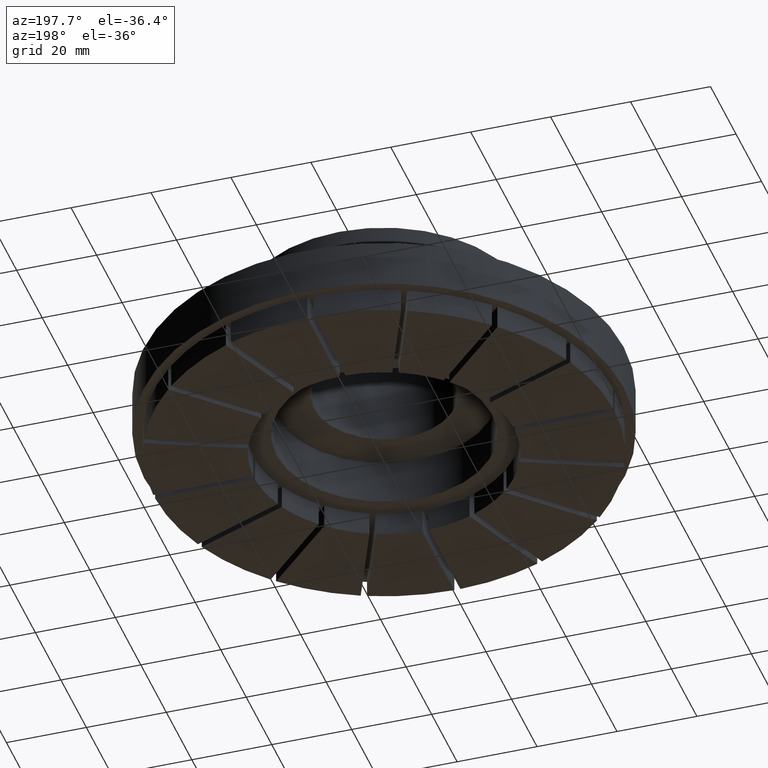
[diagram: clean part render]
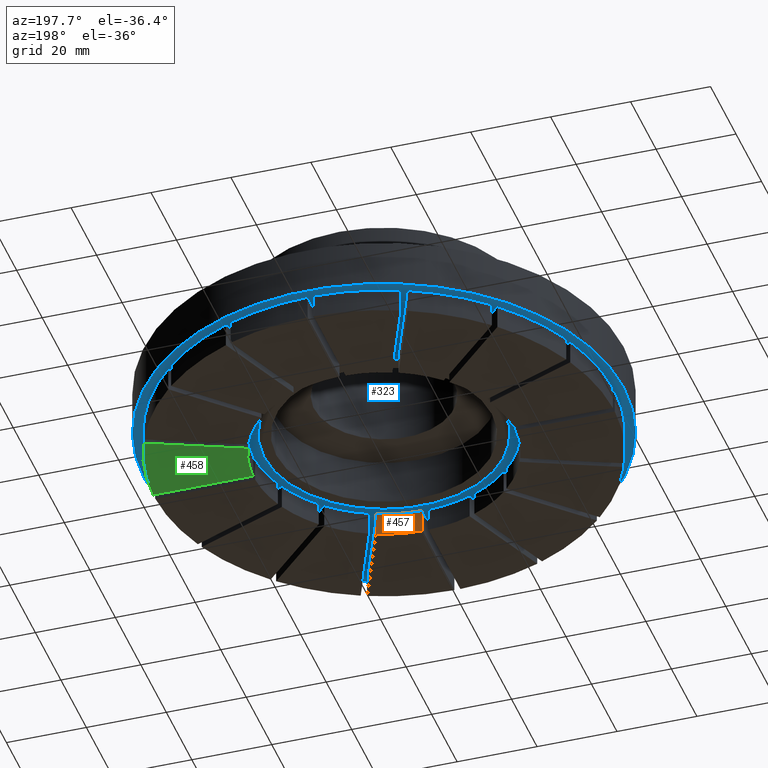
[diagram: same view with three faces highlighted in distinct colors, each labeled with its STEP entity id]
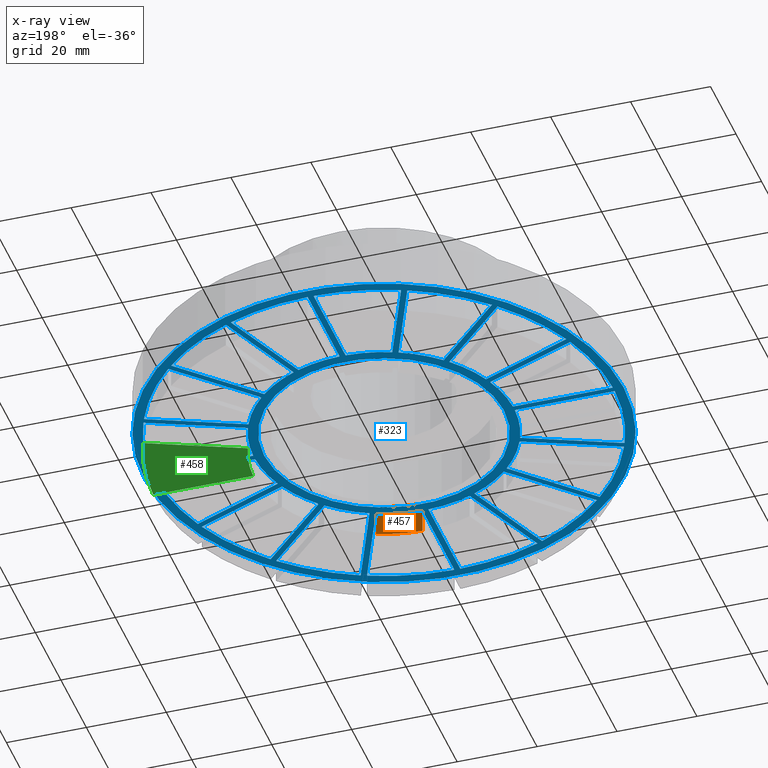
[diagram: x-ray of the same camera — body ghosted, the three highlighted faces saturated]
A machine part, auxiliary view with three faces highlighted in distinct colors.
The next image is the same camera in x-ray (body ghosted, the three faces saturated) — at least one of them is partly hidden behind the body in this view.
Their STEP definitions:

[orange] entity #457 — the highlighted cylindrical surface (partial cylindrical patch) has radius 32.5 mm, axis along (0, 0, 1).
#457 = ADVANCED_FACE( '', ( #708 ), #709, .F. );
#708 = FACE_OUTER_BOUND( '', #960, .T. );
#709 = CYLINDRICAL_SURFACE( '', #961, 32.5000000000000 );
#960 = EDGE_LOOP( '', ( #1759, #1760, #1761, #1762 ) );
#961 = AXIS2_PLACEMENT_3D( '', #1763, #1764, #1765 );
#1759 = ORIENTED_EDGE( '', *, *, #2027, .T. );
#1760 = ORIENTED_EDGE( '', *, *, #2019, .F. );
#1761 = ORIENTED_EDGE( '', *, *, #2022, .F. );
#1762 = ORIENTED_EDGE( '', *, *, #2026, .T. );
#1763 = CARTESIAN_POINT( '', ( 1.38777878078145E-014, 1.08420217248550E-016, 8.00000000000000 ) );
#1764 = DIRECTION( '', ( -0.000000000000000, 0.000000000000000, 1.00000000000000 ) );
#1765 = DIRECTION( '', ( -0.999914930218995, -0.0130434782608696, 0.000000000000000 ) );
#2019 = EDGE_CURVE( '', #2442, #2437, #2444, .T. );
#2022 = EDGE_CURVE( '', #2447, #2442, #2449, .T. );
#2026 = EDGE_CURVE( '', #2447, #2453, #2455, .T. );
#2027 = EDGE_CURVE( '', #2453, #2437, #2456, .T. );
#2437 = VERTEX_POINT( '', #3192 );
#2442 = VERTEX_POINT( '', #3199 );
#2444 = LINE( '', #3202, #3203 );
#2447 = VERTEX_POINT( '', #3206 );
#2449 = CIRCLE( '', #3209, 32.5000000000000 );
#2453 = VERTEX_POINT( '', #3214 );
#2455 = LINE( '', #3217, #3218 );
#2456 = CIRCLE( '', #3219, 32.5000000000000 );
#3192 = CARTESIAN_POINT( '', ( 32.4913450014000, 0.750000000000021, 0.000000000000000 ) );
#3199 = CARTESIAN_POINT( '', ( 32.4913450014000, 0.750000000000021, 8.00000000000000 ) );
#3202 = CARTESIAN_POINT( '', ( 32.4913450014000, 0.750000000000021, 8.00000000000000 ) );
#3203 = VECTOR( '', #3623, 1000.00000000000 );
#3206 = CARTESIAN_POINT( '', ( 30.3051012048301, 11.7409897779106, 8.00000000000000 ) );
#3209 = AXIS2_PLACEMENT_3D( '', #3628, #3629, #3630 );
#3214 = CARTESIAN_POINT( '', ( 30.3051012048301, 11.7409897779106, 0.000000000000000 ) );
#3217 = CARTESIAN_POINT( '', ( 30.3051012048301, 11.7409897779106, 8.00000000000000 ) );
#3218 = VECTOR( '', #3636, 1000.00000000000 );
#3219 = AXIS2_PLACEMENT_3D( '', #3637, #3638, #3639 );
#3623 = DIRECTION( '', ( 0.000000000000000, -0.000000000000000, -1.00000000000000 ) );
#3628 = CARTESIAN_POINT( '', ( 1.38777878078145E-014, 1.08420217248550E-016, 8.00000000000000 ) );
#3629 = DIRECTION( '', ( 0.000000000000000, 0.000000000000000, -1.00000000000000 ) );
#3630 = DIRECTION( '', ( 1.00000000000000, 0.000000000000000, 0.000000000000000 ) );
#3636 = DIRECTION( '', ( 0.000000000000000, -0.000000000000000, -1.00000000000000 ) );
#3637 = CARTESIAN_POINT( '', ( 1.38777878078145E-014, 1.08420217248550E-016, 0.000000000000000 ) );
#3638 = DIRECTION( '', ( 0.000000000000000, 0.000000000000000, -1.00000000000000 ) );
#3639 = DIRECTION( '', ( 1.00000000000000, 0.000000000000000, 0.000000000000000 ) );

[blue] entity #323 — the highlighted planar face has unit normal (0, 0, 1).
#323 = ADVANCED_FACE( '', ( #502, #503, #504, #505, #506, #507, #508, #509, #510, #511, #512, #513, #514, #515, #516, #517, #518, #519 ), #520, .F. );
#502 = FACE_BOUND( '', #754, .T. );
#503 = FACE_BOUND( '', #755, .T. );
#504 = FACE_BOUND( '', #756, .T. );
#505 = FACE_BOUND( '', #757, .T. );
#506 = FACE_BOUND( '', #758, .T. );
#507 = FACE_BOUND( '', #759, .T. );
#508 = FACE_BOUND( '', #760, .T. );
#509 = FACE_BOUND( '', #761, .T. );
#510 = FACE_OUTER_BOUND( '', #762, .T. );
#511 = FACE_BOUND( '', #763, .T. );
#512 = FACE_BOUND( '', #764, .T. );
#513 = FACE_BOUND( '', #765, .T. );
#514 = FACE_BOUND( '', #766, .T. );
#515 = FACE_BOUND( '', #767, .T. );
#516 = FACE_BOUND( '', #768, .T. );
#517 = FACE_BOUND( '', #769, .T. );
#518 = FACE_BOUND( '', #770, .T. );
#519 = FACE_BOUND( '', #771, .T. );
#520 = PLANE( '', #772 );
#754 = EDGE_LOOP( '', ( #1059, #1060, #1061, #1062 ) );
#755 = EDGE_LOOP( '', ( #1063, #1064, #1065, #1066 ) );
#756 = EDGE_LOOP( '', ( #1067, #1068, #1069, #1070 ) );
#757 = EDGE_LOOP( '', ( #1071, #1072, #1073, #1074 ) );
#758 = EDGE_LOOP( '', ( #1075, #1076, #1077, #1078 ) );
#759 = EDGE_LOOP( '', ( #1079, #1080, #1081, #1082 ) );
#760 = EDGE_LOOP( '', ( #1083, #1084, #1085, #1086 ) );
#761 = EDGE_LOOP( '', ( #1087, #1088, #1089, #1090 ) );
#762 = EDGE_LOOP( '', ( #1091 ) );
#763 = EDGE_LOOP( '', ( #1092 ) );
#764 = EDGE_LOOP( '', ( #1093, #1094, #1095, #1096 ) );
#765 = EDGE_LOOP( '', ( #1097, #1098, #1099, #1100 ) );
#766 = EDGE_LOOP( '', ( #1101, #1102, #1103, #1104 ) );
#767 = EDGE_LOOP( '', ( #1105, #1106, #1107, #1108 ) );
#768 = EDGE_LOOP( '', ( #1109, #1110, #1111, #1112 ) );
#769 = EDGE_LOOP( '', ( #1113, #1114, #1115, #1116 ) );
#770 = EDGE_LOOP( '', ( #1117, #1118, #1119, #1120 ) );
#771 = EDGE_LOOP( '', ( #1121, #1122, #1123, #1124 ) );
#772 = AXIS2_PLACEMENT_3D( '', #1125, #1126, #1127 );
#1059 = ORIENTED_EDGE( '', *, *, #1798, .F. );
#1060 = ORIENTED_EDGE( '', *, *, #1799, .F. );
#1061 = ORIENTED_EDGE( '', *, *, #1800, .F. );
#1062 = ORIENTED_EDGE( '', *, *, #1801, .F. );
#1063 = ORIENTED_EDGE( '', *, *, #1802, .F. );
#1064 = ORIENTED_EDGE( '', *, *, #1803, .F. );
#1065 = ORIENTED_EDGE( '', *, *, #1804, .F. );
#1066 = ORIENTED_EDGE( '', *, *, #1805, .F. );
#1067 = ORIENTED_EDGE( '', *, *, #1806, .F. );
#1068 = ORIENTED_EDGE( '', *, *, #1807, .F. );
#1069 = ORIENTED_EDGE( '', *, *, #1808, .F. );
#1070 = ORIENTED_EDGE( '', *, *, #1809, .F. );
#1071 = ORIENTED_EDGE( '', *, *, #1810, .F. );
#1072 = ORIENTED_EDGE( '', *, *, #1811, .F. );
#1073 = ORIENTED_EDGE( '', *, *, #1812, .F. );
#1074 = ORIENTED_EDGE( '', *, *, #1813, .F. );
#1075 = ORIENTED_EDGE( '', *, *, #1814, .F. );
#1076 = ORIENTED_EDGE( '', *, *, #1815, .F. );
#1077 = ORIENTED_EDGE( '', *, *, #1816, .F. );
#1078 = ORIENTED_EDGE( '', *, *, #1817, .F. );
#1079 = ORIENTED_EDGE( '', *, *, #1818, .F. );
#1080 = ORIENTED_EDGE( '', *, *, #1819, .F. );
#1081 = ORIENTED_EDGE( '', *, *, #1820, .F. );
#1082 = ORIENTED_EDGE( '', *, *, #1821, .F. );
#1083 = ORIENTED_EDGE( '', *, *, #1822, .F. );
#1084 = ORIENTED_EDGE( '', *, *, #1823, .F. );
#1085 = ORIENTED_EDGE( '', *, *, #1824, .F. );
#1086 = ORIENTED_EDGE( '', *, *, #1825, .F. );
#1087 = ORIENTED_EDGE( '', *, *, #1826, .F. );
#1088 = ORIENTED_EDGE( '', *, *, #1827, .F. );
#1089 = ORIENTED_EDGE( '', *, *, #1828, .F. );
#1090 = ORIENTED_EDGE( '', *, *, #1829, .F. );
#1091 = ORIENTED_EDGE( '', *, *, #1830, .F. );
#1092 = ORIENTED_EDGE( '', *, *, #1831, .T. );
#1093 = ORIENTED_EDGE( '', *, *, #1832, .F. );
#1094 = ORIENTED_EDGE( '', *, *, #1833, .F. );
#1095 = ORIENTED_EDGE( '', *, *, #1834, .F. );
#1096 = ORIENTED_EDGE( '', *, *, #1835, .F. );
#1097 = ORIENTED_EDGE( '', *, *, #1836, .F. );
#1098 = ORIENTED_EDGE( '', *, *, #1837, .F. );
#1099 = ORIENTED_EDGE( '', *, *, #1838, .F. );
#1100 = ORIENTED_EDGE( '', *, *, #1839, .F. );
#1101 = ORIENTED_EDGE( '', *, *, #1840, .F. );
#1102 = ORIENTED_EDGE( '', *, *, #1841, .F. );
#1103 = ORIENTED_EDGE( '', *, *, #1842, .F. );
#1104 = ORIENTED_EDGE( '', *, *, #1843, .F. );
#1105 = ORIENTED_EDGE( '', *, *, #1844, .F. );
#1106 = ORIENTED_EDGE( '', *, *, #1845, .F. );
#1107 = ORIENTED_EDGE( '', *, *, #1846, .F. );
#1108 = ORIENTED_EDGE( '', *, *, #1847, .F. );
#1109 = ORIENTED_EDGE( '', *, *, #1848, .F. );
#1110 = ORIENTED_EDGE( '', *, *, #1849, .F. );
#1111 = ORIENTED_EDGE( '', *, *, #1850, .F. );
#1112 = ORIENTED_EDGE( '', *, *, #1851, .F. );
#1113 = ORIENTED_EDGE( '', *, *, #1852, .F. );
#1114 = ORIENTED_EDGE( '', *, *, #1853, .F. );
#1115 = ORIENTED_EDGE( '', *, *, #1854, .F. );
#1116 = ORIENTED_EDGE( '', *, *, #1855, .F. );
#1117 = ORIENTED_EDGE( '', *, *, #1856, .F. );
#1118 = ORIENTED_EDGE( '', *, *, #1857, .F. );
#1119 = ORIENTED_EDGE( '', *, *, #1858, .F. );
#1120 = ORIENTED_EDGE( '', *, *, #1859, .F. );
#1121 = ORIENTED_EDGE( '', *, *, #1860, .F. );
#1122 = ORIENTED_EDGE( '', *, *, #1861, .F. );
#1123 = ORIENTED_EDGE( '', *, *, #1862, .F. );
#1124 = ORIENTED_EDGE( '', *, *, #1863, .F. );
#1125 = CARTESIAN_POINT( '', ( 0.000000000000000, 0.000000000000000, 6.00000000000000 ) );
#1126 = DIRECTION( '', ( 0.000000000000000, 0.000000000000000, 1.00000000000000 ) );
#1127 = DIRECTION( '', ( 1.00000000000000, 0.000000000000000, 0.000000000000000 ) );
#1798 = EDGE_CURVE( '', #2073, #2074, #2075, .F. );
#1799 = EDGE_CURVE( '', #2076, #2073, #2077, .T. );
#1800 = EDGE_CURVE( '', #2078, #2076, #2079, .T. );
#1801 = EDGE_CURVE( '', #2074, #2078, #2080, .T. );
#1802 = EDGE_CURVE( '', #2081, #2082, #2083, .F. );
#1803 = EDGE_CURVE( '', #2084, #2081, #2085, .T. );
#1804 = EDGE_CURVE( '', #2086, #2084, #2087, .T. );
#1805 = EDGE_CURVE( '', #2082, #2086, #2088, .T. );
#1806 = EDGE_CURVE( '', #2089, #2090, #2091, .F. );
#1807 = EDGE_CURVE( '', #2092, #2089, #2093, .T. );
#1808 = EDGE_CURVE( '', #2094, #2092, #2095, .T. );
#1809 = EDGE_CURVE( '', #2090, #2094, #2096, .T. );
#1810 = EDGE_CURVE( '', #2097, #2098, #2099, .F. );
#1811 = EDGE_CURVE( '', #2100, #2097, #2101, .T. );
#1812 = EDGE_CURVE( '', #2102, #2100, #2103, .T. );
#1813 = EDGE_CURVE( '', #2098, #2102, #2104, .T. );
#1814 = EDGE_CURVE( '', #2105, #2106, #2107, .F. );
#1815 = EDGE_CURVE( '', #2108, #2105, #2109, .T. );
#1816 = EDGE_CURVE( '', #2110, #2108, #2111, .T. );
#1817 = EDGE_CURVE( '', #2106, #2110, #2112, .T. );
#1818 = EDGE_CURVE( '', #2113, #2114, #2115, .F. );
#1819 = EDGE_CURVE( '', #2116, #2113, #2117, .T. );
#1820 = EDGE_CURVE( '', #2118, #2116, #2119, .T. );
#1821 = EDGE_CURVE( '', #2114, #2118, #2120, .T. );
#1822 = EDGE_CURVE( '', #2121, #2122, #2123, .F. );
#1823 = EDGE_CURVE( '', #2124, #2121, #2125, .T. );
#1824 = EDGE_CURVE( '', #2126, #2124, #2127, .T. );
#1825 = EDGE_CURVE( '', #2122, #2126, #2128, .T. );
#1826 = EDGE_CURVE( '', #2129, #2130, #2131, .F. );
#1827 = EDGE_CURVE( '', #2132, #2129, #2133, .T. );
#1828 = EDGE_CURVE( '', #2134, #2132, #2135, .T. );
#1829 = EDGE_CURVE( '', #2130, #2134, #2136, .T. );
#1830 = EDGE_CURVE( '', #2137, #2137, #2138, .T. );
#1831 = EDGE_CURVE( '', #2139, #2139, #2140, .T. );
#1832 = EDGE_CURVE( '', #2141, #2142, #2143, .F. );
#1833 = EDGE_CURVE( '', #2144, #2141, #2145, .T. );
#1834 = EDGE_CURVE( '', #2146, #2144, #2147, .T. );
#1835 = EDGE_CURVE( '', #2142, #2146, #2148, .T. );
#1836 = EDGE_CURVE( '', #2149, #2150, #2151, .F. );
#1837 = EDGE_CURVE( '', #2152, #2149, #2153, .T. );
#1838 = EDGE_CURVE( '', #2154, #2152, #2155, .T. );
#1839 = EDGE_CURVE( '', #2150, #2154, #2156, .T. );
#1840 = EDGE_CURVE( '', #2157, #2158, #2159, .F. );
#1841 = EDGE_CURVE( '', #2160, #2157, #2161, .T. );
#1842 = EDGE_CURVE( '', #2162, #2160, #2163, .T. );
#1843 = EDGE_CURVE( '', #2158, #2162, #2164, .T. );
#1844 = EDGE_CURVE( '', #2165, #2166, #2167, .F. );
#1845 = EDGE_CURVE( '', #2168, #2165, #2169, .T. );
#1846 = EDGE_CURVE( '', #2170, #2168, #2171, .T. );
#1847 = EDGE_CURVE( '', #2166, #2170, #2172, .T. );
#1848 = EDGE_CURVE( '', #2173, #2174, #2175, .F. );
#1849 = EDGE_CURVE( '', #2176, #2173, #2177, .T. );
#1850 = EDGE_CURVE( '', #2178, #2176, #2179, .T. );
#1851 = EDGE_CURVE( '', #2174, #2178, #2180, .T. );
#1852 = EDGE_CURVE( '', #2181, #2182, #2183, .F. );
#1853 = EDGE_CURVE( '', #2184, #2181, #2185, .T. );
#1854 = EDGE_CURVE( '', #2186, #2184, #2187, .T. );
#1855 = EDGE_CURVE( '', #2182, #2186, #2188, .T. );
#1856 = EDGE_CURVE( '', #2189, #2190, #2191, .F. );
#1857 = EDGE_CURVE( '', #2192, #2189, #2193, .T. );
#1858 = EDGE_CURVE( '', #2194, #2192, #2195, .T. );
#1859 = EDGE_CURVE( '', #2190, #2194, #2196, .T. );
#1860 = EDGE_CURVE( '', #2197, #2198, #2199, .F. );
#1861 = EDGE_CURVE( '', #2200, #2197, #2201, .T. );
#1862 = EDGE_CURVE( '', #2202, #2200, #2203, .T. );
#1863 = EDGE_CURVE( '', #2198, #2202, #2204, .T. );
#2073 = VERTEX_POINT( '', #2646 );
#2074 = VERTEX_POINT( '', #2647 );
#2075 = CIRCLE( '', #2648, 57.5000000000000 );
#2076 = VERTEX_POINT( '', #2649 );
#2077 = LINE( '', #2650, #2651 );
#2078 = VERTEX_POINT( '', #2652 );
#2079 = CIRCLE( '', #2653, 32.5000000000000 );
#2080 = LINE( '', #2654, #2655 );
#2081 = VERTEX_POINT( '', #2656 );
#2082 = VERTEX_POINT( '', #2657 );
#2083 = CIRCLE( '', #2658, 57.5000000000000 );
#2084 = VERTEX_POINT( '', #2659 );
#2085 = LINE( '', #2660, #2661 );
#2086 = VERTEX_POINT( '', #2662 );
#2087 = CIRCLE( '', #2663, 32.5000000000000 );
#2088 = LINE( '', #2664, #2665 );
#2089 = VERTEX_POINT( '', #2666 );
#2090 = VERTEX_POINT( '', #2667 );
#2091 = CIRCLE( '', #2668, 57.5000000000000 );
#2092 = VERTEX_POINT( '', #2669 );
#2093 = LINE( '', #2670, #2671 );
#2094 = VERTEX_POINT( '', #2672 );
#2095 = CIRCLE( '', #2673, 32.5000000000000 );
#2096 = LINE( '', #2674, #2675 );
#2097 = VERTEX_POINT( '', #2676 );
#2098 = VERTEX_POINT( '', #2677 );
#2099 = CIRCLE( '', #2678, 57.5000000000000 );
#2100 = VERTEX_POINT( '', #2679 );
#2101 = LINE( '', #2680, #2681 );
#2102 = VERTEX_POINT( '', #2682 );
#2103 = CIRCLE( '', #2683, 32.5000000000000 );
#2104 = LINE( '', #2684, #2685 );
#2105 = VERTEX_POINT( '', #2686 );
#2106 = VERTEX_POINT( '', #2687 );
#2107 = CIRCLE( '', #2688, 57.5000000000000 );
#2108 = VERTEX_POINT( '', #2689 );
#2109 = LINE( '', #2690, #2691 );
#2110 = VERTEX_POINT( '', #2692 );
#2111 = CIRCLE( '', #2693, 32.5000000000000 );
#2112 = LINE( '', #2694, #2695 );
#2113 = VERTEX_POINT( '', #2696 );
#2114 = VERTEX_POINT( '', #2697 );
#2115 = CIRCLE( '', #2698, 57.5000000000000 );
#2116 = VERTEX_POINT( '', #2699 );
#2117 = LINE( '', #2700, #2701 );
#2118 = VERTEX_POINT( '', #2702 );
#2119 = CIRCLE( '', #2703, 32.5000000000000 );
#2120 = LINE( '', #2704, #2705 );
#2121 = VERTEX_POINT( '', #2706 );
#2122 = VERTEX_POINT( '', #2707 );
#2123 = CIRCLE( '', #2708, 57.5000000000000 );
#2124 = VERTEX_POINT( '', #2709 );
#2125 = LINE( '', #2710, #2711 );
#2126 = VERTEX_POINT( '', #2712 );
#2127 = CIRCLE( '', #2713, 32.5000000000000 );
#2128 = LINE( '', #2714, #2715 );
#2129 = VERTEX_POINT( '', #2716 );
#2130 = VERTEX_POINT( '', #2717 );
#2131 = CIRCLE( '', #2718, 57.5000000000000 );
#2132 = VERTEX_POINT( '', #2719 );
#2133 = LINE( '', #2720, #2721 );
#2134 = VERTEX_POINT( '', #2722 );
#2135 = CIRCLE( '', #2723, 32.5000000000000 );
#2136 = LINE( '', #2724, #2725 );
#2137 = VERTEX_POINT( '', #2726 );
#2138 = CIRCLE( '', #2727, 60.0000000000000 );
#2139 = VERTEX_POINT( '', #2728 );
#2140 = CIRCLE( '', #2729, 30.0000000000000 );
#2141 = VERTEX_POINT( '', #2730 );
#2142 = VERTEX_POINT( '', #2731 );
#2143 = CIRCLE( '', #2732, 57.5000000000000 );
#2144 = VERTEX_POINT( '', #2733 );
#2145 = LINE( '', #2734, #2735 );
#2146 = VERTEX_POINT( '', #2736 );
#2147 = CIRCLE( '', #2737, 32.5000000000000 );
#2148 = LINE( '', #2738, #2739 );
#2149 = VERTEX_POINT( '', #2740 );
#2150 = VERTEX_POINT( '', #2741 );
#2151 = CIRCLE( '', #2742, 57.5000000000000 );
#2152 = VERTEX_POINT( '', #2743 );
#2153 = LINE( '', #2744, #2745 );
#2154 = VERTEX_POINT( '', #2746 );
#2155 = CIRCLE( '', #2747, 32.5000000000000 );
#2156 = LINE( '', #2748, #2749 );
#2157 = VERTEX_POINT( '', #2750 );
#2158 = VERTEX_POINT( '', #2751 );
#2159 = CIRCLE( '', #2752, 57.5000000000000 );
#2160 = VERTEX_POINT( '', #2753 );
#2161 = LINE( '', #2754, #2755 );
#2162 = VERTEX_POINT( '', #2756 );
#2163 = CIRCLE( '', #2757, 32.5000000000000 );
#2164 = LINE( '', #2758, #2759 );
#2165 = VERTEX_POINT( '', #2760 );
#2166 = VERTEX_POINT( '', #2761 );
#2167 = CIRCLE( '', #2762, 57.5000000000000 );
#2168 = VERTEX_POINT( '', #2763 );
#2169 = LINE( '', #2764, #2765 );
#2170 = VERTEX_POINT( '', #2766 );
#2171 = CIRCLE( '', #2767, 32.5000000000000 );
#2172 = LINE( '', #2768, #2769 );
#2173 = VERTEX_POINT( '', #2770 );
#2174 = VERTEX_POINT( '', #2771 );
#2175 = CIRCLE( '', #2772, 57.5000000000000 );
#2176 = VERTEX_POINT( '', #2773 );
#2177 = LINE( '', #2774, #2775 );
#2178 = VERTEX_POINT( '', #2776 );
#2179 = CIRCLE( '', #2777, 32.5000000000000 );
#2180 = LINE( '', #2778, #2779 );
#2181 = VERTEX_POINT( '', #2780 );
#2182 = VERTEX_POINT( '', #2781 );
#2183 = CIRCLE( '', #2782, 57.5000000000000 );
#2184 = VERTEX_POINT( '', #2783 );
#2185 = LINE( '', #2784, #2785 );
#2186 = VERTEX_POINT( '', #2786 );
#2187 = CIRCLE( '', #2787, 32.5000000000000 );
#2188 = LINE( '', #2788, #2789 );
#2189 = VERTEX_POINT( '', #2790 );
#2190 = VERTEX_POINT( '', #2791 );
#2191 = CIRCLE( '', #2792, 57.5000000000000 );
#2192 = VERTEX_POINT( '', #2793 );
#2193 = LINE( '', #2794, #2795 );
#2194 = VERTEX_POINT( '', #2796 );
#2195 = CIRCLE( '', #2797, 32.5000000000000 );
#2196 = LINE( '', #2798, #2799 );
#2197 = VERTEX_POINT( '', #2800 );
#2198 = VERTEX_POINT( '', #2801 );
#2199 = CIRCLE( '', #2802, 57.5000000000000 );
#2200 = VERTEX_POINT( '', #2803 );
#2201 = LINE( '', #2804, #2805 );
#2202 = VERTEX_POINT( '', #2806 );
#2203 = CIRCLE( '', #2807, 32.5000000000000 );
#2204 = LINE( '', #2808, #2809 );
#2646 = CARTESIAN_POINT( '', ( 52.8315413769286, -22.6953351096185, 6.00000000000001 ) );
#2647 = CARTESIAN_POINT( '', ( 41.1855111825226, -40.1248510107428, 6.00000000000000 ) );
#2648 = AXIS2_PLACEMENT_3D( '', #3267, #3268, #3269 );
#2649 = CARTESIAN_POINT( '', ( 29.7310760562825, -13.1268090766775, 6.00000000000000 ) );
#2650 = CARTESIAN_POINT( '', ( -0.287012574273818, -0.692909649383467, 6.00000000000000 ) );
#2651 = VECTOR( '', #3270, 1000.00000000000 );
#2652 = CARTESIAN_POINT( '', ( 23.5051804662515, -22.4445202944717, 6.00000000000001 ) );
#2653 = AXIS2_PLACEMENT_3D( '', #3271, #3272, #3273 );
#2654 = CARTESIAN_POINT( '', ( 0.530330085889909, 0.530330085889909, 6.00000000000000 ) );
#2655 = VECTOR( '', #3274, 1000.00000000000 );
#2656 = CARTESIAN_POINT( '', ( 21.3095158108515, -53.4055665254763, 6.00000000000001 ) );
#2657 = CARTESIAN_POINT( '', ( 0.749999999999989, -57.4951084875922, 6.00000000000000 ) );
#2658 = AXIS2_PLACEMENT_3D( '', #3275, #3276, #3277 );
#2659 = CARTESIAN_POINT( '', ( 11.7409897779106, -30.3051012048302, 6.00000000000000 ) );
#2660 = CARTESIAN_POINT( '', ( -0.692909649383467, -0.287012574273818, 6.00000000000000 ) );
#2661 = VECTOR( '', #3278, 1000.00000000000 );
#2662 = CARTESIAN_POINT( '', ( 0.749999999999994, -32.4913450014000, 6.00000000000001 ) );
#2663 = AXIS2_PLACEMENT_3D( '', #3279, #3280, #3281 );
#2664 = CARTESIAN_POINT( '', ( 0.750000000000000, -1.37772764904077E-016, 6.00000000000000 ) );
#2665 = VECTOR( '', #3282, 1000.00000000000 );
#2666 = CARTESIAN_POINT( '', ( -22.6953351096185, -52.8315413769286, 6.00000000000001 ) );
#2667 = CARTESIAN_POINT( '', ( -40.1248510107428, -41.1855111825226, 6.00000000000000 ) );
#2668 = AXIS2_PLACEMENT_3D( '', #3283, #3284, #3285 );
#2669 = CARTESIAN_POINT( '', ( -13.1268090766775, -29.7310760562825, 6.00000000000000 ) );
#2670 = CARTESIAN_POINT( '', ( -0.692909649383467, 0.287012574273818, 6.00000000000000 ) );
#2671 = VECTOR( '', #3286, 1000.00000000000 );
#2672 = CARTESIAN_POINT( '', ( -22.4445202944717, -23.5051804662515, 6.00000000000001 ) );
#2673 = AXIS2_PLACEMENT_3D( '', #3287, #3288, #3289 );
#2674 = CARTESIAN_POINT( '', ( 0.530330085889909, -0.530330085889909, 6.00000000000000 ) );
#2675 = VECTOR( '', #3290, 1000.00000000000 );
#2676 = CARTESIAN_POINT( '', ( -53.4055665254763, -21.3095158108515, 6.00000000000001 ) );
#2677 = CARTESIAN_POINT( '', ( -57.4951084875922, -0.749999999999993, 6.00000000000000 ) );
#2678 = AXIS2_PLACEMENT_3D( '', #3291, #3292, #3293 );
#2679 = CARTESIAN_POINT( '', ( -30.3051012048302, -11.7409897779106, 6.00000000000000 ) );
#2680 = CARTESIAN_POINT( '', ( -0.287012574273818, 0.692909649383467, 6.00000000000000 ) );
#2681 = VECTOR( '', #3294, 1000.00000000000 );
#2682 = CARTESIAN_POINT( '', ( -32.4913450014000, -0.749999999999996, 6.00000000000001 ) );
#2683 = AXIS2_PLACEMENT_3D( '', #3295, #3296, #3297 );
#2684 = CARTESIAN_POINT( '', ( -9.18485099360515E-017, -0.750000000000000, 6.00000000000000 ) );
#2685 = VECTOR( '', #3298, 1000.00000000000 );
#2686 = CARTESIAN_POINT( '', ( -52.8315413769286, 22.6953351096185, 6.00000000000001 ) );
#2687 = CARTESIAN_POINT( '', ( -41.1855111825226, 40.1248510107428, 6.00000000000000 ) );
#2688 = AXIS2_PLACEMENT_3D( '', #3299, #3300, #3301 );
#2689 = CARTESIAN_POINT( '', ( -29.7310760562825, 13.1268090766775, 6.00000000000000 ) );
#2690 = CARTESIAN_POINT( '', ( 0.287012574273819, 0.692909649383469, 6.00000000000000 ) );
#2691 = VECTOR( '', #3302, 1000.00000000000 );
#2692 = CARTESIAN_POINT( '', ( -23.5051804662515, 22.4445202944717, 6.00000000000001 ) );
#2693 = AXIS2_PLACEMENT_3D( '', #3303, #3304, #3305 );
#2694 = CARTESIAN_POINT( '', ( -0.530330085889909, -0.530330085889909, 6.00000000000000 ) );
#2695 = VECTOR( '', #3306, 1000.00000000000 );
#2696 = CARTESIAN_POINT( '', ( -21.3095158108515, 53.4055665254763, 6.00000000000001 ) );
#2697 = CARTESIAN_POINT( '', ( -0.749999999999997, 57.4951084875922, 6.00000000000000 ) );
#2698 = AXIS2_PLACEMENT_3D( '', #3307, #3308, #3309 );
#2699 = CARTESIAN_POINT( '', ( -11.7409897779106, 30.3051012048302, 6.00000000000000 ) );
#2700 = CARTESIAN_POINT( '', ( 0.692909649383467, 0.287012574273818, 6.00000000000000 ) );
#2701 = VECTOR( '', #3310, 1000.00000000000 );
#2702 = CARTESIAN_POINT( '', ( -0.749999999999998, 32.4913450014000, 6.00000000000001 ) );
#2703 = AXIS2_PLACEMENT_3D( '', #3311, #3312, #3313 );
#2704 = CARTESIAN_POINT( '', ( -0.750000000000000, 4.59242549680257E-017, 6.00000000000000 ) );
#2705 = VECTOR( '', #3314, 1000.00000000000 );
#2706 = CARTESIAN_POINT( '', ( 22.6953351096185, 52.8315413769286, 6.00000000000001 ) );
#2707 = CARTESIAN_POINT( '', ( 40.1248510107428, 41.1855111825226, 6.00000000000000 ) );
#2708 = AXIS2_PLACEMENT_3D( '', #3315, #3316, #3317 );
#2709 = CARTESIAN_POINT( '', ( 13.1268090766775, 29.7310760562825, 6.00000000000000 ) );
#2710 = CARTESIAN_POINT( '', ( 0.692909649383469, -0.287012574273819, 6.00000000000000 ) );
#2711 = VECTOR( '', #3318, 1000.00000000000 );
#2712 = CARTESIAN_POINT( '', ( 22.4445202944717, 23.5051804662515, 6.00000000000001 ) );
#2713 = AXIS2_PLACEMENT_3D( '', #3319, #3320, #3321 );
#2714 = CARTESIAN_POINT( '', ( -0.530330085889909, 0.530330085889909, 6.00000000000000 ) );
#2715 = VECTOR( '', #3322, 1000.00000000000 );
#2716 = CARTESIAN_POINT( '', ( 53.4055665254763, 21.3095158108515, 6.00000000000001 ) );
#2717 = CARTESIAN_POINT( '', ( 57.4951084875922, 0.750000000000000, 6.00000000000000 ) );
#2718 = AXIS2_PLACEMENT_3D( '', #3323, #3324, #3325 );
#2719 = CARTESIAN_POINT( '', ( 30.3051012048302, 11.7409897779106, 6.00000000000000 ) );
#2720 = CARTESIAN_POINT( '', ( 0.287012574273818, -0.692909649383467, 6.00000000000000 ) );
#2721 = VECTOR( '', #3326, 1000.00000000000 );
#2722 = CARTESIAN_POINT( '', ( 32.4913450014000, 0.750000000000000, 6.00000000000001 ) );
#2723 = AXIS2_PLACEMENT_3D( '', #3327, #3328, #3329 );
#2724 = CARTESIAN_POINT( '', ( 0.000000000000000, 0.750000000000000, 6.00000000000000 ) );
#2725 = VECTOR( '', #3330, 1000.00000000000 );
#2726 = CARTESIAN_POINT( '', ( 60.0000000000000, 0.000000000000000, 6.00000000000000 ) );
#2727 = AXIS2_PLACEMENT_3D( '', #3331, #3332, #3333 );
#2728 = CARTESIAN_POINT( '', ( 30.0000000000000, 0.000000000000000, 6.00000000000000 ) );
#2729 = AXIS2_PLACEMENT_3D( '', #3334, #3335, #3336 );
#2730 = CARTESIAN_POINT( '', ( 41.1855111825226, 40.1248510107428, 6.00000000000001 ) );
#2731 = CARTESIAN_POINT( '', ( 52.8315413769286, 22.6953351096185, 6.00000000000000 ) );
#2732 = AXIS2_PLACEMENT_3D( '', #3337, #3338, #3339 );
#2733 = CARTESIAN_POINT( '', ( 23.5051804662515, 22.4445202944717, 6.00000000000000 ) );
#2734 = CARTESIAN_POINT( '', ( 0.530330085889914, -0.530330085889913, 6.00000000000000 ) );
#2735 = VECTOR( '', #3340, 1000.00000000000 );
#2736 = CARTESIAN_POINT( '', ( 29.7310760562825, 13.1268090766775, 6.00000000000001 ) );
#2737 = AXIS2_PLACEMENT_3D( '', #3341, #3342, #3343 );
#2738 = CARTESIAN_POINT( '', ( -0.287012574273818, 0.692909649383466, 6.00000000000000 ) );
#2739 = VECTOR( '', #3344, 1000.00000000000 );
#2740 = CARTESIAN_POINT( '', ( 0.750000000000004, 57.4951084875922, 6.00000000000001 ) );
#2741 = CARTESIAN_POINT( '', ( 21.3095158108515, 53.4055665254763, 6.00000000000000 ) );
#2742 = AXIS2_PLACEMENT_3D( '', #3345, #3346, #3347 );
#2743 = CARTESIAN_POINT( '', ( 0.750000000000002, 32.4913450014000, 6.00000000000000 ) );
#2744 = CARTESIAN_POINT( '', ( 0.750000000000002, 0.000000000000000, 6.00000000000000 ) );
#2745 = VECTOR( '', #3348, 1000.00000000000 );
#2746 = CARTESIAN_POINT( '', ( 11.7409897779106, 30.3051012048302, 6.00000000000001 ) );
#2747 = AXIS2_PLACEMENT_3D( '', #3349, #3350, #3351 );
#2748 = CARTESIAN_POINT( '', ( -0.692909649383466, 0.287012574273818, 6.00000000000000 ) );
#2749 = VECTOR( '', #3352, 1000.00000000000 );
#2750 = CARTESIAN_POINT( '', ( -40.1248510107428, 41.1855111825226, 6.00000000000001 ) );
#2751 = CARTESIAN_POINT( '', ( -22.6953351096185, 52.8315413769286, 6.00000000000000 ) );
#2752 = AXIS2_PLACEMENT_3D( '', #3353, #3354, #3355 );
#2753 = CARTESIAN_POINT( '', ( -22.4445202944717, 23.5051804662515, 6.00000000000000 ) );
#2754 = CARTESIAN_POINT( '', ( 0.530330085889913, 0.530330085889914, 6.00000000000000 ) );
#2755 = VECTOR( '', #3356, 1000.00000000000 );
#2756 = CARTESIAN_POINT( '', ( -13.1268090766775, 29.7310760562825, 6.00000000000001 ) );
#2757 = AXIS2_PLACEMENT_3D( '', #3357, #3358, #3359 );
#2758 = CARTESIAN_POINT( '', ( -0.692909649383466, -0.287012574273818, 6.00000000000000 ) );
#2759 = VECTOR( '', #3360, 1000.00000000000 );
#2760 = CARTESIAN_POINT( '', ( -57.4951084875922, 0.750000000000004, 6.00000000000001 ) );
#2761 = CARTESIAN_POINT( '', ( -53.4055665254763, 21.3095158108515, 6.00000000000000 ) );
#2762 = AXIS2_PLACEMENT_3D( '', #3361, #3362, #3363 );
#2763 = CARTESIAN_POINT( '', ( -32.4913450014000, 0.750000000000004, 6.00000000000000 ) );
#2764 = CARTESIAN_POINT( '', ( 0.000000000000000, 0.750000000000004, 6.00000000000000 ) );
#2765 = VECTOR( '', #3364, 1000.00000000000 );
#2766 = CARTESIAN_POINT( '', ( -30.3051012048302, 11.7409897779106, 6.00000000000001 ) );
#2767 = AXIS2_PLACEMENT_3D( '', #3365, #3366, #3367 );
#2768 = CARTESIAN_POINT( '', ( -0.287012574273819, -0.692909649383469, 6.00000000000000 ) );
#2769 = VECTOR( '', #3368, 1000.00000000000 );
#2770 = CARTESIAN_POINT( '', ( -41.1855111825226, -40.1248510107428, 6.00000000000001 ) );
#2771 = CARTESIAN_POINT( '', ( -52.8315413769286, -22.6953351096185, 6.00000000000000 ) );
#2772 = AXIS2_PLACEMENT_3D( '', #3369, #3370, #3371 );
#2773 = CARTESIAN_POINT( '', ( -23.5051804662515, -22.4445202944717, 6.00000000000000 ) );
#2774 = CARTESIAN_POINT( '', ( -0.530330085889913, 0.530330085889914, 6.00000000000000 ) );
#2775 = VECTOR( '', #3372, 1000.00000000000 );
#2776 = CARTESIAN_POINT( '', ( -29.7310760562825, -13.1268090766775, 6.00000000000001 ) );
#2777 = AXIS2_PLACEMENT_3D( '', #3373, #3374, #3375 );
#2778 = CARTESIAN_POINT( '', ( 0.287012574273818, -0.692909649383466, 6.00000000000000 ) );
#2779 = VECTOR( '', #3376, 1000.00000000000 );
#2780 = CARTESIAN_POINT( '', ( -0.749999999999983, -57.4951084875922, 6.00000000000001 ) );
#2781 = CARTESIAN_POINT( '', ( -21.3095158108515, -53.4055665254763, 6.00000000000000 ) );
#2782 = AXIS2_PLACEMENT_3D( '', #3377, #3378, #3379 );
#2783 = CARTESIAN_POINT( '', ( -0.749999999999990, -32.4913450014000, 6.00000000000000 ) );
#2784 = CARTESIAN_POINT( '', ( -0.750000000000001, -2.49800180540661E-016, 6.00000000000000 ) );
#2785 = VECTOR( '', #3380, 1000.00000000000 );
#2786 = CARTESIAN_POINT( '', ( -11.7409897779106, -30.3051012048302, 6.00000000000001 ) );
#2787 = AXIS2_PLACEMENT_3D( '', #3381, #3382, #3383 );
#2788 = CARTESIAN_POINT( '', ( 0.692909649383466, -0.287012574273817, 6.00000000000000 ) );
#2789 = VECTOR( '', #3384, 1000.00000000000 );
#2790 = CARTESIAN_POINT( '', ( 40.1248510107428, -41.1855111825226, 6.00000000000001 ) );
#2791 = CARTESIAN_POINT( '', ( 22.6953351096185, -52.8315413769286, 6.00000000000000 ) );
#2792 = AXIS2_PLACEMENT_3D( '', #3385, #3386, #3387 );
#2793 = CARTESIAN_POINT( '', ( 22.4445202944717, -23.5051804662515, 6.00000000000000 ) );
#2794 = CARTESIAN_POINT( '', ( -0.530330085889911, -0.530330085889911, 6.00000000000000 ) );
#2795 = VECTOR( '', #3388, 1000.00000000000 );
#2796 = CARTESIAN_POINT( '', ( 13.1268090766775, -29.7310760562825, 6.00000000000001 ) );
#2797 = AXIS2_PLACEMENT_3D( '', #3389, #3390, #3391 );
#2798 = CARTESIAN_POINT( '', ( 0.692909649383466, 0.287012574273818, 6.00000000000000 ) );
#2799 = VECTOR( '', #3392, 1000.00000000000 );
#2800 = CARTESIAN_POINT( '', ( 57.4951084875922, -0.749999999999987, 6.00000000000001 ) );
#2801 = CARTESIAN_POINT( '', ( 53.4055665254763, -21.3095158108515, 6.00000000000000 ) );
#2802 = AXIS2_PLACEMENT_3D( '', #3393, #3394, #3395 );
#2803 = CARTESIAN_POINT( '', ( 32.4913450014000, -0.749999999999992, 6.00000000000000 ) );
#2804 = CARTESIAN_POINT( '', ( 2.08166817117217E-016, -0.750000000000001, 6.00000000000000 ) );
#2805 = VECTOR( '', #3396, 1000.00000000000 );
#2806 = CARTESIAN_POINT( '', ( 30.3051012048302, -11.7409897779106, 6.00000000000001 ) );
#2807 = AXIS2_PLACEMENT_3D( '', #3397, #3398, #3399 );
#2808 = CARTESIAN_POINT( '', ( 0.287012574273817, 0.692909649383466, 6.00000000000000 ) );
#2809 = VECTOR( '', #3400, 1000.00000000000 );
#3267 = CARTESIAN_POINT( '', ( 0.000000000000000, 0.000000000000000, 6.00000000000001 ) );
#3268 = DIRECTION( '', ( 0.000000000000000, 0.000000000000000, 1.00000000000000 ) );
#3269 = DIRECTION( '', ( 1.00000000000000, 0.000000000000000, -0.000000000000000 ) );
#3270 = DIRECTION( '', ( 0.923879532511287, -0.382683432365090, 0.000000000000000 ) );
#3271 = CARTESIAN_POINT( '', ( 0.000000000000000, 0.000000000000000, 6.00000000000001 ) );
#3272 = DIRECTION( '', ( 0.000000000000000, 0.000000000000000, 1.00000000000000 ) );
#3273 = DIRECTION( '', ( 1.00000000000000, 0.000000000000000, -0.000000000000000 ) );
#3274 = DIRECTION( '', ( -0.707106781186547, 0.707106781186548, 0.000000000000000 ) );
#3275 = CARTESIAN_POINT( '', ( 0.000000000000000, 0.000000000000000, 6.00000000000001 ) );
#3276 = DIRECTION( '', ( 0.000000000000000, 0.000000000000000, 1.00000000000000 ) );
#3277 = DIRECTION( '', ( 1.00000000000000, 0.000000000000000, -0.000000000000000 ) );
#3278 = DIRECTION( '', ( 0.382683432365090, -0.923879532511287, 0.000000000000000 ) );
#3279 = CARTESIAN_POINT( '', ( 0.000000000000000, 0.000000000000000, 6.00000000000001 ) );
#3280 = DIRECTION( '', ( 0.000000000000000, 0.000000000000000, 1.00000000000000 ) );
#3281 = DIRECTION( '', ( 1.00000000000000, 0.000000000000000, -0.000000000000000 ) );
#3282 = DIRECTION( '', ( 1.83697019872103E-016, 1.00000000000000, -0.000000000000000 ) );
#3283 = CARTESIAN_POINT( '', ( 0.000000000000000, 0.000000000000000, 6.00000000000001 ) );
#3284 = DIRECTION( '', ( 0.000000000000000, 0.000000000000000, 1.00000000000000 ) );
#3285 = DIRECTION( '', ( 1.00000000000000, 0.000000000000000, -0.000000000000000 ) );
#3286 = DIRECTION( '', ( -0.382683432365090, -0.923879532511287, 0.000000000000000 ) );
#3287 = CARTESIAN_POINT( '', ( 0.000000000000000, 0.000000000000000, 6.00000000000001 ) );
#3288 = DIRECTION( '', ( 0.000000000000000, 0.000000000000000, 1.00000000000000 ) );
#3289 = DIRECTION( '', ( 1.00000000000000, 0.000000000000000, -0.000000000000000 ) );
#3290 = DIRECTION( '', ( 0.707106781186548, 0.707106781186547, -0.000000000000000 ) );
#3291 = CARTESIAN_POINT( '', ( 0.000000000000000, 0.000000000000000, 6.00000000000001 ) );
#3292 = DIRECTION( '', ( 0.000000000000000, 0.000000000000000, 1.00000000000000 ) );
#3293 = DIRECTION( '', ( 1.00000000000000, 0.000000000000000, -0.000000000000000 ) );
#3294 = DIRECTION( '', ( -0.923879532511287, -0.382683432365090, 0.000000000000000 ) );
#3295 = CARTESIAN_POINT( '', ( 0.000000000000000, 0.000000000000000, 6.00000000000001 ) );
#3296 = DIRECTION( '', ( 0.000000000000000, 0.000000000000000, 1.00000000000000 ) );
#3297 = DIRECTION( '', ( 1.00000000000000, 0.000000000000000, -0.000000000000000 ) );
#3298 = DIRECTION( '', ( 1.00000000000000, -1.22464679914735E-016, 0.000000000000000 ) );
#3299 = CARTESIAN_POINT( '', ( 0.000000000000000, 0.000000000000000, 6.00000000000001 ) );
#3300 = DIRECTION( '', ( 0.000000000000000, 0.000000000000000, 1.00000000000000 ) );
#3301 = DIRECTION( '', ( 1.00000000000000, 0.000000000000000, -0.000000000000000 ) );
#3302 = DIRECTION( '', ( -0.923879532511287, 0.382683432365090, 0.000000000000000 ) );
#3303 = CARTESIAN_POINT( '', ( 0.000000000000000, 0.000000000000000, 6.00000000000001 ) );
#3304 = DIRECTION( '', ( 0.000000000000000, 0.000000000000000, 1.00000000000000 ) );
#3305 = DIRECTION( '', ( 1.00000000000000, 0.000000000000000, -0.000000000000000 ) );
#3306 = DIRECTION( '', ( 0.707106781186547, -0.707106781186548, 0.000000000000000 ) );
#3307 = CARTESIAN_POINT( '', ( 0.000000000000000, 0.000000000000000, 6.00000000000001 ) );
#3308 = DIRECTION( '', ( 0.000000000000000, 0.000000000000000, 1.00000000000000 ) );
#3309 = DIRECTION( '', ( 1.00000000000000, 0.000000000000000, -0.000000000000000 ) );
#3310 = DIRECTION( '', ( -0.382683432365090, 0.923879532511287, 0.000000000000000 ) );
#3311 = CARTESIAN_POINT( '', ( 0.000000000000000, 0.000000000000000, 6.00000000000001 ) );
#3312 = DIRECTION( '', ( 0.000000000000000, 0.000000000000000, 1.00000000000000 ) );
#3313 = DIRECTION( '', ( 1.00000000000000, 0.000000000000000, -0.000000000000000 ) );
#3314 = DIRECTION( '', ( -6.12323399573677E-017, -1.00000000000000, 0.000000000000000 ) );
#3315 = CARTESIAN_POINT( '', ( 0.000000000000000, 0.000000000000000, 6.00000000000001 ) );
#3316 = DIRECTION( '', ( 0.000000000000000, 0.000000000000000, 1.00000000000000 ) );
#3317 = DIRECTION( '', ( 1.00000000000000, 0.000000000000000, -0.000000000000000 ) );
#3318 = DIRECTION( '', ( 0.382683432365090, 0.923879532511287, -0.000000000000000 ) );
#3319 = CARTESIAN_POINT( '', ( 0.000000000000000, 0.000000000000000, 6.00000000000001 ) );
#3320 = DIRECTION( '', ( 0.000000000000000, 0.000000000000000, 1.00000000000000 ) );
#3321 = DIRECTION( '', ( 1.00000000000000, 0.000000000000000, -0.000000000000000 ) );
#3322 = DIRECTION( '', ( -0.707106781186548, -0.707106781186547, 0.000000000000000 ) );
#3323 = CARTESIAN_POINT( '', ( 0.000000000000000, 0.000000000000000, 6.00000000000001 ) );
#3324 = DIRECTION( '', ( 0.000000000000000, 0.000000000000000, 1.00000000000000 ) );
#3325 = DIRECTION( '', ( 1.00000000000000, 0.000000000000000, -0.000000000000000 ) );
#3326 = DIRECTION( '', ( 0.923879532511287, 0.382683432365090, -0.000000000000000 ) );
#3327 = CARTESIAN_POINT( '', ( 0.000000000000000, 0.000000000000000, 6.00000000000001 ) );
#3328 = DIRECTION( '', ( 0.000000000000000, 0.000000000000000, 1.00000000000000 ) );
#3329 = DIRECTION( '', ( 1.00000000000000, 0.000000000000000, -0.000000000000000 ) );
#3330 = DIRECTION( '', ( -1.00000000000000, 0.000000000000000, 0.000000000000000 ) );
#3331 = CARTESIAN_POINT( '', ( 0.000000000000000, 0.000000000000000, 6.00000000000000 ) );
#3332 = DIRECTION( '', ( 0.000000000000000, 0.000000000000000, 1.00000000000000 ) );
#3333 = DIRECTION( '', ( 1.00000000000000, 0.000000000000000, 0.000000000000000 ) );
#3334 = CARTESIAN_POINT( '', ( 0.000000000000000, 0.000000000000000, 6.00000000000000 ) );
#3335 = DIRECTION( '', ( 0.000000000000000, 0.000000000000000, 1.00000000000000 ) );
#3336 = DIRECTION( '', ( 1.00000000000000, 0.000000000000000, 0.000000000000000 ) );
#3337 = CARTESIAN_POINT( '', ( 0.000000000000000, 0.000000000000000, 6.00000000000001 ) );
#3338 = DIRECTION( '', ( 0.000000000000000, 0.000000000000000, 1.00000000000000 ) );
#3339 = DIRECTION( '', ( 1.00000000000000, 0.000000000000000, -0.000000000000000 ) );
#3340 = DIRECTION( '', ( 0.707106781186547, 0.707106781186548, -0.000000000000000 ) );
#3341 = CARTESIAN_POINT( '', ( 0.000000000000000, 0.000000000000000, 6.00000000000001 ) );
#3342 = DIRECTION( '', ( 0.000000000000000, 0.000000000000000, 1.00000000000000 ) );
#3343 = DIRECTION( '', ( 1.00000000000000, 0.000000000000000, -0.000000000000000 ) );
#3344 = DIRECTION( '', ( -0.923879532511287, -0.382683432365090, 0.000000000000000 ) );
#3345 = CARTESIAN_POINT( '', ( 0.000000000000000, 0.000000000000000, 6.00000000000001 ) );
#3346 = DIRECTION( '', ( 0.000000000000000, 0.000000000000000, 1.00000000000000 ) );
#3347 = DIRECTION( '', ( 1.00000000000000, 0.000000000000000, -0.000000000000000 ) );
#3348 = DIRECTION( '', ( 0.000000000000000, 1.00000000000000, 0.000000000000000 ) );
#3349 = CARTESIAN_POINT( '', ( 0.000000000000000, 0.000000000000000, 6.00000000000001 ) );
#3350 = DIRECTION( '', ( 0.000000000000000, 0.000000000000000, 1.00000000000000 ) );
#3351 = DIRECTION( '', ( 1.00000000000000, 0.000000000000000, -0.000000000000000 ) );
#3352 = DIRECTION( '', ( -0.382683432365090, -0.923879532511287, 0.000000000000000 ) );
#3353 = CARTESIAN_POINT( '', ( 0.000000000000000, 0.000000000000000, 6.00000000000001 ) );
#3354 = DIRECTION( '', ( 0.000000000000000, 0.000000000000000, 1.00000000000000 ) );
#3355 = DIRECTION( '', ( 1.00000000000000, 0.000000000000000, -0.000000000000000 ) );
#3356 = DIRECTION( '', ( -0.707106781186548, 0.707106781186547, 0.000000000000000 ) );
#3357 = CARTESIAN_POINT( '', ( 0.000000000000000, 0.000000000000000, 6.00000000000001 ) );
#3358 = DIRECTION( '', ( 0.000000000000000, 0.000000000000000, 1.00000000000000 ) );
#3359 = DIRECTION( '', ( 1.00000000000000, 0.000000000000000, -0.000000000000000 ) );
#3360 = DIRECTION( '', ( 0.382683432365090, -0.923879532511287, 0.000000000000000 ) );
#3361 = CARTESIAN_POINT( '', ( 0.000000000000000, 0.000000000000000, 6.00000000000001 ) );
#3362 = DIRECTION( '', ( 0.000000000000000, 0.000000000000000, 1.00000000000000 ) );
#3363 = DIRECTION( '', ( 1.00000000000000, 0.000000000000000, -0.000000000000000 ) );
#3364 = DIRECTION( '', ( -1.00000000000000, 0.000000000000000, 0.000000000000000 ) );
#3365 = CARTESIAN_POINT( '', ( 0.000000000000000, 0.000000000000000, 6.00000000000001 ) );
#3366 = DIRECTION( '', ( 0.000000000000000, 0.000000000000000, 1.00000000000000 ) );
#3367 = DIRECTION( '', ( 1.00000000000000, 0.000000000000000, -0.000000000000000 ) );
#3368 = DIRECTION( '', ( 0.923879532511287, -0.382683432365090, 0.000000000000000 ) );
#3369 = CARTESIAN_POINT( '', ( 0.000000000000000, 0.000000000000000, 6.00000000000001 ) );
#3370 = DIRECTION( '', ( 0.000000000000000, 0.000000000000000, 1.00000000000000 ) );
#3371 = DIRECTION( '', ( 1.00000000000000, 0.000000000000000, -0.000000000000000 ) );
#3372 = DIRECTION( '', ( -0.707106781186548, -0.707106781186547, 0.000000000000000 ) );
#3373 = CARTESIAN_POINT( '', ( 0.000000000000000, 0.000000000000000, 6.00000000000001 ) );
#3374 = DIRECTION( '', ( 0.000000000000000, 0.000000000000000, 1.00000000000000 ) );
#3375 = DIRECTION( '', ( 1.00000000000000, 0.000000000000000, -0.000000000000000 ) );
#3376 = DIRECTION( '', ( 0.923879532511287, 0.382683432365090, -0.000000000000000 ) );
#3377 = CARTESIAN_POINT( '', ( 0.000000000000000, 0.000000000000000, 6.00000000000001 ) );
#3378 = DIRECTION( '', ( 0.000000000000000, 0.000000000000000, 1.00000000000000 ) );
#3379 = DIRECTION( '', ( 1.00000000000000, 0.000000000000000, -0.000000000000000 ) );
#3380 = DIRECTION( '', ( 3.33066907387547E-016, -1.00000000000000, 0.000000000000000 ) );
#3381 = CARTESIAN_POINT( '', ( 0.000000000000000, 0.000000000000000, 6.00000000000001 ) );
#3382 = DIRECTION( '', ( 0.000000000000000, 0.000000000000000, 1.00000000000000 ) );
#3383 = DIRECTION( '', ( 1.00000000000000, 0.000000000000000, -0.000000000000000 ) );
#3384 = DIRECTION( '', ( 0.382683432365090, 0.923879532511287, -0.000000000000000 ) );
#3385 = CARTESIAN_POINT( '', ( 0.000000000000000, 0.000000000000000, 6.00000000000001 ) );
#3386 = DIRECTION( '', ( 0.000000000000000, 0.000000000000000, 1.00000000000000 ) );
#3387 = DIRECTION( '', ( 1.00000000000000, 0.000000000000000, -0.000000000000000 ) );
#3388 = DIRECTION( '', ( 0.707106781186548, -0.707106781186547, 0.000000000000000 ) );
#3389 = CARTESIAN_POINT( '', ( 0.000000000000000, 0.000000000000000, 6.00000000000001 ) );
#3390 = DIRECTION( '', ( 0.000000000000000, 0.000000000000000, 1.00000000000000 ) );
#3391 = DIRECTION( '', ( 1.00000000000000, 0.000000000000000, -0.000000000000000 ) );
#3392 = DIRECTION( '', ( -0.382683432365090, 0.923879532511287, 0.000000000000000 ) );
#3393 = CARTESIAN_POINT( '', ( 0.000000000000000, 0.000000000000000, 6.00000000000001 ) );
#3394 = DIRECTION( '', ( 0.000000000000000, 0.000000000000000, 1.00000000000000 ) );
#3395 = DIRECTION( '', ( 1.00000000000000, 0.000000000000000, -0.000000000000000 ) );
#3396 = DIRECTION( '', ( 1.00000000000000, 2.77555756156289E-016, -0.000000000000000 ) );
#3397 = CARTESIAN_POINT( '', ( 0.000000000000000, 0.000000000000000, 6.00000000000001 ) );
#3398 = DIRECTION( '', ( 0.000000000000000, 0.000000000000000, 1.00000000000000 ) );
#3399 = DIRECTION( '', ( 1.00000000000000, 0.000000000000000, -0.000000000000000 ) );
#3400 = DIRECTION( '', ( -0.923879532511287, 0.382683432365090, 0.000000000000000 ) );

[green] entity #458 — the highlighted planar face has unit normal (0, 0, 1).
#458 = ADVANCED_FACE( '', ( #710 ), #711, .F. );
#710 = FACE_OUTER_BOUND( '', #962, .T. );
#711 = PLANE( '', #963 );
#962 = EDGE_LOOP( '', ( #1766, #1767, #1768, #1769 ) );
#963 = AXIS2_PLACEMENT_3D( '', #1770, #1771, #1772 );
#1766 = ORIENTED_EDGE( '', *, *, #2016, .F. );
#1767 = ORIENTED_EDGE( '', *, *, #2027, .F. );
#1768 = ORIENTED_EDGE( '', *, *, #2025, .F. );
#1769 = ORIENTED_EDGE( '', *, *, #2023, .F. );
#1770 = CARTESIAN_POINT( '', ( 1.38777878078145E-014, 1.08420217248550E-016, 0.000000000000000 ) );
#1771 = DIRECTION( '', ( 0.000000000000000, -0.000000000000000, 1.00000000000000 ) );
#1772 = DIRECTION( '', ( 0.999914930218995, 0.0130434782608696, 0.000000000000000 ) );
#2016 = EDGE_CURVE( '', #2437, #2438, #2439, .T. );
#2023 = EDGE_CURVE( '', #2438, #2450, #2451, .T. );
#2025 = EDGE_CURVE( '', #2450, #2453, #2454, .T. );
#2027 = EDGE_CURVE( '', #2453, #2437, #2456, .T. );
#2437 = VERTEX_POINT( '', #3192 );
#2438 = VERTEX_POINT( '', #3193 );
#2439 = LINE( '', #3194, #3195 );
#2450 = VERTEX_POINT( '', #3210 );
#2451 = CIRCLE( '', #3211, 57.5000000000000 );
#2453 = VERTEX_POINT( '', #3214 );
#2454 = LINE( '', #3215, #3216 );
#2456 = CIRCLE( '', #3219, 32.5000000000000 );
#3192 = CARTESIAN_POINT( '', ( 32.4913450014000, 0.750000000000021, 0.000000000000000 ) );
#3193 = CARTESIAN_POINT( '', ( 57.4951084875922, 0.750000000000000, 0.000000000000000 ) );
#3194 = CARTESIAN_POINT( '', ( 32.4913450014000, 0.750000000000001, 0.000000000000000 ) );
#3195 = VECTOR( '', #3620, 1000.00000000000 );
#3210 = CARTESIAN_POINT( '', ( 53.4055665254762, 21.3095158108515, 0.000000000000000 ) );
#3211 = AXIS2_PLACEMENT_3D( '', #3631, #3632, #3633 );
#3214 = CARTESIAN_POINT( '', ( 30.3051012048301, 11.7409897779106, 0.000000000000000 ) );
#3215 = CARTESIAN_POINT( '', ( 53.4055665254763, 21.3095158108516, 0.000000000000000 ) );
#3216 = VECTOR( '', #3635, 1000.00000000000 );
#3219 = AXIS2_PLACEMENT_3D( '', #3637, #3638, #3639 );
#3620 = DIRECTION( '', ( 1.00000000000000, 1.73472347597681E-018, 0.000000000000000 ) );
#3631 = CARTESIAN_POINT( '', ( 1.38777878078145E-014, 1.08420217248550E-016, 0.000000000000000 ) );
#3632 = DIRECTION( '', ( 0.000000000000000, 0.000000000000000, 1.00000000000000 ) );
#3633 = DIRECTION( '', ( 1.00000000000000, -1.73472347597681E-018, 0.000000000000000 ) );
#3635 = DIRECTION( '', ( -0.923879532511287, -0.382683432365090, -0.000000000000000 ) );
#3637 = CARTESIAN_POINT( '', ( 1.38777878078145E-014, 1.08420217248550E-016, 0.000000000000000 ) );
#3638 = DIRECTION( '', ( 0.000000000000000, 0.000000000000000, -1.00000000000000 ) );
#3639 = DIRECTION( '', ( 1.00000000000000, 0.000000000000000, 0.000000000000000 ) );